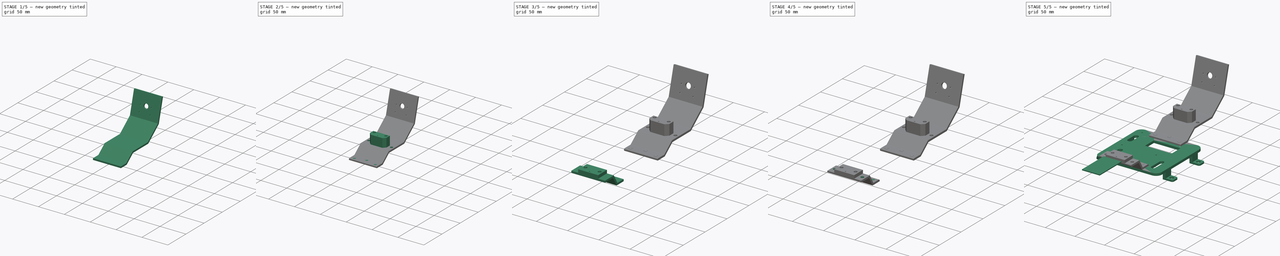
[diagram: build sequence overview — one tinted view per stage of 5, left to right]
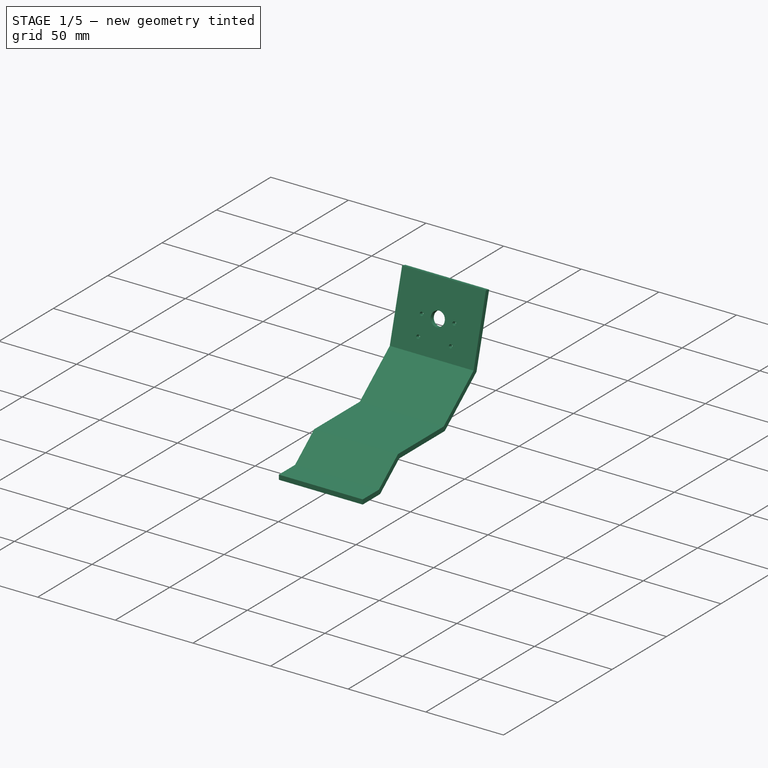
[diagram: stage 1 of 5 — iso view after this stage's code; geometry added in this stage tinted green]
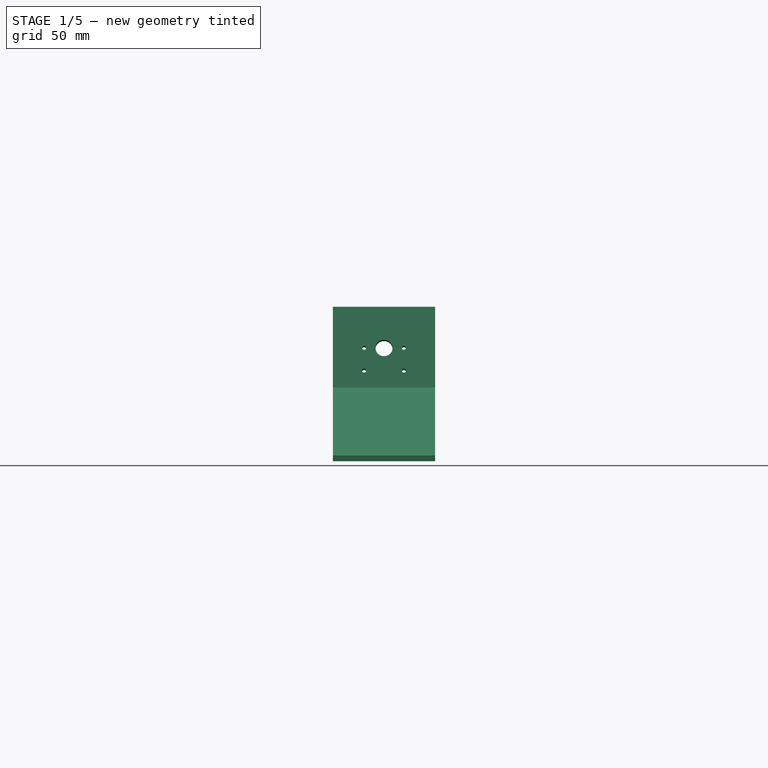
[diagram: stage 1 of 5 — front view after this stage's code; geometry added in this stage tinted green]
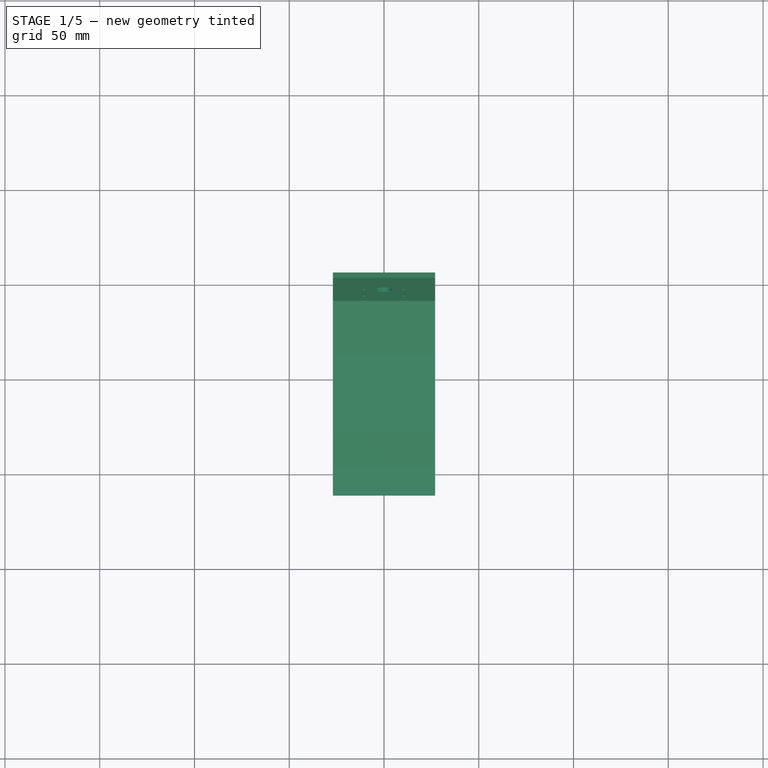
[diagram: stage 1 of 5 — top view after this stage's code; geometry added in this stage tinted green]
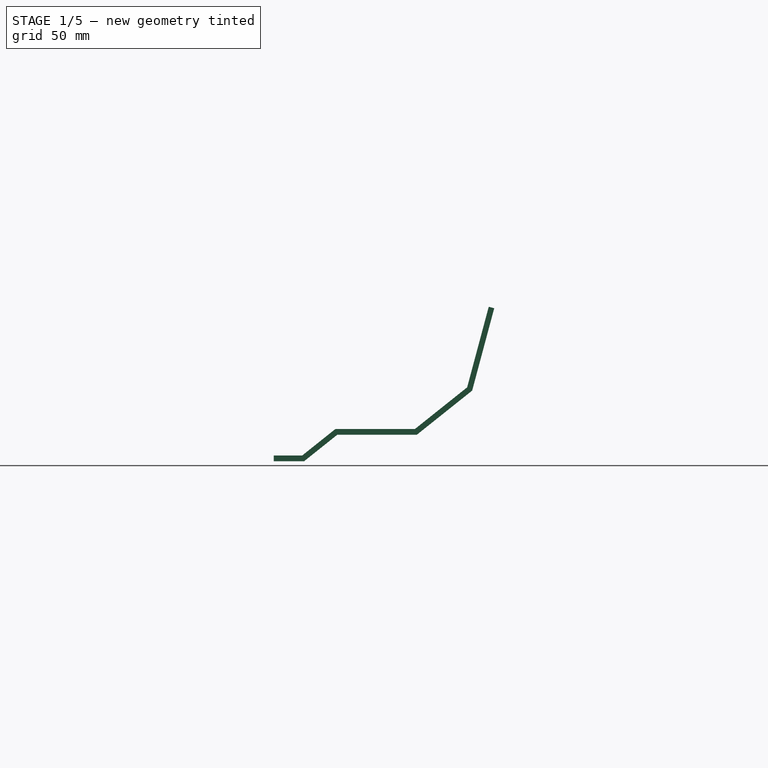
[diagram: stage 1 of 5 — right view after this stage's code; geometry added in this stage tinted green]
FCSTD DOCUMENT  (FreeCAD 0.19R24267 +148 (Git))
Label: PiMount v1.3
License: All rights reserved
LicenseURL: https://en.wikipedia.org/wiki/All_rights_reserved
objects: Sketcher::SketchObject×15, PartDesign::Pocket×10, PartDesign::Pad×8, PartDesign::Fillet×4, PartDesign::Body×4, PartDesign::ShapeBinder×3, PartDesign::Chamfer×2, Spreadsheet::Sheet×1, App::MeasureDistance×1, App::Part×1
note: 70 computed .brp shape members not serialized (recipe doc carries the construction recipe); baked Part::Feature solids carry a one-line shape summary decoded from their .brp

FEATURE [Sketcher::SketchObject] Sketch  label="FeetSketch"
  AttachmentOffset = pos=(0,0,-9.25) rot=(1,0,0;3.14159rad)
  FullyConstrained = true
  MapMode = 5
  Placement = pos=(0,0,-9.25) rot=(1,0,0;3.14159rad)
  Support = -> [XY_Plane001]
  expr: Constraints[64] = <<Dimensions>>.MountScrewHoleRadius
  expr: Constraints[70] = <<Dimensions>>.MountScrewHoleRadius
  expr: Constraints[55] = 13 / 2
  expr: .AttachmentOffset.Base.z = <<Dimensions>>.FeetSketchOffset
  sketch-geometry (32):
    g0: LineSegment StartX=-65.75 StartY=55 StartZ=0 EndX=65.75 EndY=55 EndZ=0
    g1: LineSegment StartX=65.75 StartY=55 StartZ=0 EndX=65.75 EndY=-55 EndZ=0
    g2: LineSegment StartX=65.75 StartY=-55 StartZ=0 EndX=-65.75 EndY=-55 EndZ=0
    g3: LineSegment StartX=-65.75 StartY=-55 StartZ=0 EndX=-65.75 EndY=55 EndZ=0
    g4: LineSegment StartX=48.75 StartY=-28.5 StartZ=0 EndX=65.75 EndY=-28.5 EndZ=0
    g5: LineSegment StartX=65.75 StartY=-28.5 StartZ=0 EndX=65.75 EndY=-41.5 EndZ=0
    g6: LineSegment StartX=65.75 StartY=-41.5 StartZ=0 EndX=48.75 EndY=-41.5 EndZ=0
    g7: LineSegment StartX=48.75 StartY=-41.5 StartZ=0 EndX=48.75 EndY=-28.5 EndZ=0
    g8: LineSegment StartX=-65.75 StartY=-21.5 StartZ=0 EndX=-48.75 EndY=-21.5 EndZ=0
    g9: LineSegment StartX=-48.75 StartY=-21.5 StartZ=0 EndX=-48.75 EndY=-34.5 EndZ=0
    g10: LineSegment StartX=-48.75 StartY=-34.5 StartZ=0 EndX=-65.75 EndY=-34.5 EndZ=0
    g11: LineSegment StartX=-65.75 StartY=-34.5 StartZ=0 EndX=-65.75 EndY=-21.5 EndZ=0
    g12: LineSegment StartX=-65.75 StartY=34.5 StartZ=0 EndX=-48.75 EndY=34.5 EndZ=0
    g13: LineSegment StartX=-48.75 StartY=34.5 StartZ=0 EndX=-48.75 EndY=21.5 EndZ=0
    g14: LineSegment StartX=-48.75 StartY=21.5 StartZ=0 EndX=-65.75 EndY=21.5 EndZ=0
    g15: LineSegment StartX=-65.75 StartY=21.5 StartZ=0 EndX=-65.75 EndY=34.5 EndZ=0
    g16: LineSegment StartX=48.75 StartY=36 StartZ=0 EndX=65.75 EndY=36 EndZ=0
    g17: LineSegment StartX=65.75 StartY=36 StartZ=0 EndX=65.75 EndY=23 EndZ=0
    g18: LineSegment StartX=65.75 StartY=23 StartZ=0 EndX=48.75 EndY=23 EndZ=0
    g19: LineSegment StartX=48.75 StartY=23 StartZ=0 EndX=48.75 EndY=36 EndZ=0
    g20: Circle CenterX=-59.25 CenterY=28 CenterZ=0 NormalX=0 NormalY=0 NormalZ=1 AngleXU=0 Radius=3.25
    g21: Circle CenterX=-59.35 CenterY=-28 CenterZ=0 NormalX=0 NormalY=0 NormalZ=1 AngleXU=0 Radius=3.25
    g22: Circle CenterX=59.25 CenterY=-35 CenterZ=0 NormalX=0 NormalY=0 NormalZ=1 AngleXU=0 Radius=3.25
    g23: Circle CenterX=59.25 CenterY=29.5 CenterZ=0 NormalX=0 NormalY=0 NormalZ=1 AngleXU=0 Radius=3.25
    g24: Circle CenterX=-51.25 CenterY=28 CenterZ=0 NormalX=0 NormalY=0 NormalZ=1 AngleXU=0 Radius=1.3
    g25: Circle CenterX=-51.25 CenterY=-28 CenterZ=0 NormalX=0 NormalY=0 NormalZ=1 AngleXU=0 Radius=1.3
    g26: Circle CenterX=51.25 CenterY=29.5 CenterZ=0 NormalX=0 NormalY=0 NormalZ=1 AngleXU=0 Radius=1.3
    g27: Circle CenterX=51.25 CenterY=-35 CenterZ=0 NormalX=0 NormalY=0 NormalZ=1 AngleXU=0 Radius=1.3
    g28: LineSegment StartX=-59.35 StartY=-28 StartZ=0 EndX=59.25 EndY=29.5 EndZ=0
    g29: GeomPoint X=-56.4256 Y=-26.5821 Z=0
    g30: GeomPoint X=56.3256 Y=28.0821 Z=0
    g31: LineSegment StartX=48.75 StartY=36 StartZ=0 EndX=-65.75 EndY=36 EndZ=0
  constraints (91):
    c: Coincident(g0,g1)
    c: Coincident(g1,g2)
    c: Coincident(g2,g3)
    c: Coincident(g3,g0)
    c: Vertical(g1)
    c: Coincident(g4,g5)
    c: Coincident(g5,g6)
    c: Coincident(g6,g7)
    c: Coincident(g7,g4)
    c: Horizontal(g4)
    c: Horizontal(g6)
    c: Vertical(g5)
    c: Vertical(g7)
    c: PointOnObject(g4,g1)
    c: Distance(g4) = 17
    c: Distance(g7) = 13
    c: Coincident(g8,g9)
    c: Coincident(g9,g10)
    c: Coincident(g10,g11)
    c: Coincident(g11,g8)
    c: Horizontal(g8)
    c: Horizontal(g10)
    c: Vertical(g9)
    c: Vertical(g11)
    c: Equal(g4,g8) = 13.5
    c: Equal(g7,g11) = 13.5
    c: PointOnObject(g10,g3)
    c: Coincident(g12,g13)
    c: Coincident(g13,g14)
    c: Coincident(g14,g15)
    c: Coincident(g15,g12)
    c: Horizontal(g12)
    c: Horizontal(g14)
    c: Vertical(g13)
    c: Vertical(g15)
    c: Equal(g4,g12) = 13.5
    c: Equal(g7,g15) = 13.5
    c: Coincident(g16,g17)
    c: Coincident(g17,g18)
    c: Coincident(g18,g19)
    c: Coincident(g19,g16)
    c: Horizontal(g16)
    c: Vertical(g17)
    c: Vertical(g19)
    c: Equal(g4,g16) = 13.5
    c: Equal(g7,g19) = 13.5
    c: Radius(g20) = 3.25
    c: Radius(g21) = 3.25
    c: Radius(g23) = 3.25
    c: Radius(g22) = 3.25
    c: Symmetric(g0,g2,g-1)
    c: Symmetric(g0,g0,g-2)
    c: Horizontal(g2)
    c: Distance(g20,g15) = 6.5
    c: Distance(g21,g11) = 6.4
    c: Distance(g21,g8) = 6.5
    c: Distance(g20,g12) = 6.5
    c: Distance(g23,g16) = 6.5
    c: Distance(g23,g17) = 6.5
    c: Distance(g22,g4) = 6.5
    c: Distance(g22,g5) = 6.5
    c: Horizontal(g18)
    c: Horizontal(g24,g20)
    c: Distance(g20,g24) = 8
    c: Radius(g24) = 1.3
    c: Equal(g24,g25) = 1
    c: Horizontal(g21,g25)
    c: Vertical(g25,g24)
    c: Horizontal(g26,g23)
    c: Distance(g26,g23) = 8
    c: Radius(g26) = 1.3
    c: Equal(g26,g27) = 1
    c: Horizontal(g27,g22)
    c: Distance(g27,g22) = 8
    c: Vertical(g22,g23)
    c: Distance(g2,g1) = 131.5
    c: Coincident(g28,g21)
    c: Coincident(g28,g23)
    c: PointOnObject(g29,g21)
    c: PointOnObject(g29,g28)
    c: PointOnObject(g30,g23)
    c: PointOnObject(g30,g28)
    c: Distance(g30,g29) = 124
    c: Symmetric(g8,g14,g-1)
    c: Distance(g1) = 110
    c: Distance(g23,g22) = 64.5
    c: Distance(g20,g21) = 56
    c: Coincident(g31,g16)
    c: PointOnObject(g31,g3)
    c: Horizontal(g31)
    c: Distance(g31,g12) = 1.5
FEATURE [Sketcher::SketchObject] Sketch001  label="PlateSketch"
  ExternalGeometry = -> [Sketch]
  FullyConstrained = true
  MapMode = 5
  Support = -> [XY_Plane001]
  expr: Constraints[9] = <<Dimensions>>.PlateLength
  sketch-geometry (4):
    g0: LineSegment StartX=-53.75 StartY=55 StartZ=0 EndX=53.75 EndY=55 EndZ=0
    g1: LineSegment StartX=53.75 StartY=55 StartZ=0 EndX=53.75 EndY=-55 EndZ=0
    g2: LineSegment StartX=53.75 StartY=-55 StartZ=0 EndX=-53.75 EndY=-55 EndZ=0
    g3: LineSegment StartX=-53.75 StartY=-55 StartZ=0 EndX=-53.75 EndY=55 EndZ=0
  constraints (10):
    c: Coincident(g0,g1)
    c: Coincident(g1,g2)
    c: Coincident(g2,g3)
    c: Coincident(g3,g0)
    c: Horizontal(g2)
    c: Vertical(g1)
    c: Symmetric(g0,g0,g-2)
    c: Symmetric(g0,g2,g-1)
    c: Distance(g-3,g3) = 5
    c: Distance(g3) = 110
FEATURE [PartDesign::Pad] Pad  label="PlatePad"
  Direction = (0,0,1)
  Length = 4
  Length2 = 10
  Profile = -> Sketch001
  Type = 0
  expr: Length = <<Dimensions>>.PlateThickness
FEATURE [Sketcher::SketchObject] Sketch002  label="LegStandoffSketch"
  ExternalGeometry = -> [Sketch001,Sketch]
  FullyConstrained = true
  MapMode = 5
  Placement = pos=(0,0,0) rot=(1,0,0;3.14159rad)
  Support = -> [Pad]
  sketch-geometry (16):
    g0: LineSegment StartX=-48.75 StartY=34.5 StartZ=0 EndX=-53.75 EndY=34.5 EndZ=0
    g1: LineSegment StartX=-53.75 StartY=34.5 StartZ=0 EndX=-53.75 EndY=21.5 EndZ=0
    g2: LineSegment StartX=-53.75 StartY=21.5 StartZ=0 EndX=-48.75 EndY=21.5 EndZ=0
    g3: LineSegment StartX=-48.75 StartY=21.5 StartZ=0 EndX=-48.75 EndY=34.5 EndZ=0
    g4: LineSegment StartX=-48.75 StartY=-21.5 StartZ=0 EndX=-53.75 EndY=-21.5 EndZ=0
    g5: LineSegment StartX=-53.75 StartY=-21.5 StartZ=0 EndX=-53.75 EndY=-34.5 EndZ=0
    g6: LineSegment StartX=-53.75 StartY=-34.5 StartZ=0 EndX=-48.75 EndY=-34.5 EndZ=0
    g7: LineSegment StartX=-48.75 StartY=-34.5 StartZ=0 EndX=-48.75 EndY=-21.5 EndZ=0
    g8: LineSegment StartX=48.75 StartY=36 StartZ=0 EndX=53.75 EndY=36 EndZ=0
    g9: LineSegment StartX=53.75 StartY=36 StartZ=0 EndX=53.75 EndY=23 EndZ=0
    g10: LineSegment StartX=53.75 StartY=23 StartZ=0 EndX=48.75 EndY=23 EndZ=0
    g11: LineSegment StartX=48.75 StartY=23 StartZ=0 EndX=48.75 EndY=36 EndZ=0
    g12: LineSegment StartX=48.75 StartY=-28.5 StartZ=0 EndX=53.75 EndY=-28.5 EndZ=0
    g13: LineSegment StartX=53.75 StartY=-28.5 StartZ=0 EndX=53.75 EndY=-41.5 EndZ=0
    g14: LineSegment StartX=53.75 StartY=-41.5 StartZ=0 EndX=48.75 EndY=-41.5 EndZ=0
    g15: LineSegment StartX=48.75 StartY=-41.5 StartZ=0 EndX=48.75 EndY=-28.5 EndZ=0
  constraints (42):
    c: Coincident(g0,g1)
    c: Coincident(g1,g2)
    c: Coincident(g2,g3)
    c: Coincident(g3,g0)
    c: Horizontal(g0)
    c: Horizontal(g2)
    c: Vertical(g1)
    c: Coincident(g0,g-9)
    c: Coincident(g-10,g2)
    c: PointOnObject(g1,g-3)
    c: Coincident(g4,g5)
    c: Coincident(g5,g6)
    c: Coincident(g6,g7)
    c: Coincident(g7,g4)
    c: Horizontal(g4)
    c: Horizontal(g6)
    c: Vertical(g5)
    c: Coincident(g-11,g4)
    c: Coincident(g6,g-12)
    c: PointOnObject(g5,g-3)
    c: Coincident(g8,g9)
    c: Coincident(g9,g10)
    c: Coincident(g10,g11)
    c: Coincident(g11,g8)
    c: Horizontal(g8)
    c: Horizontal(g10)
    c: Vertical(g9)
    c: Vertical(g11)
    c: Coincident(g8,g-15)
    c: PointOnObject(g9,g-16)
    c: PointOnObject(g9,g-7)
    c: Coincident(g12,g13)
    c: Coincident(g13,g14)
    c: Coincident(g14,g15)
    c: Coincident(g15,g12)
    c: Horizontal(g12)
    c: Horizontal(g14)
    c: Vertical(g13)
    c: Vertical(g15)
    c: Coincident(g12,g-13)
    c: PointOnObject(g13,g-14)
    c: PointOnObject(g13,g-7)
FEATURE [PartDesign::Pad] Pad001  label="LegStandoffPad"
  BaseFeature = -> Pad
  Direction = (0,0,-1)
  Length = 9.25
  Length2 = 10
  Profile = -> Sketch002
  Type = 0
  expr: Length = <<Dimensions>>.FeetStandoffHeight
FEATURE [PartDesign::Pad] Pad002  label="LegFeetPad"
  BaseFeature = -> Pad001
  Direction = (0,-1e-16,-1)
  Length = 2.75
  Length2 = 10
  Profile = -> Sketch
  Type = 0
  expr: Length = <<Dimensions>>.FeetThickness
FEATURE [PartDesign::ShapeBinder] ShapeBinder  label="FrontPlateShapeBinder"
  Support = -> [Pad002]
  TraceSupport = false
FEATURE [Sketcher::SketchObject] Sketch005  label="FrontProfileSketch"
  ExternalGeometry = -> [ShapeBinder]
  FullyConstrained = true
  MapMode = 5
  Placement = pos=(0,0,0) rot=(0.57735,0.57735,0.57735;2.0944rad)
  Support = -> [YZ_Plane002]
  expr: Constraints[43] = <<Dimensions>>.PlateFrontOverlap
  expr: Constraints[40] = <<Dimensions>>.FrontThickness
  expr: Constraints[25] = <<Dimensions>>.FrontThickness
  expr: Constraints[22] = <<Dimensions>>.FrontThickness
  expr: Constraints[17] = <<Dimensions>>.FrontThickness
  expr: Constraints[16] = <<Dimensions>>.FrontThickness
  sketch-geometry (18):
    g0: LineSegment StartX=86.5 StartY=0 StartZ=0 EndX=149.5 EndY=0 EndZ=0
    g1: LineSegment StartX=149.5 StartY=63 StartZ=0 EndX=149.5 EndY=-12 EndZ=0
    g2: LineSegment StartX=86.5 StartY=21 StartZ=0 EndX=86.5 EndY=-12 EndZ=0
    g3: LineSegment StartX=143.677 StartY=41.2667 StartZ=0 EndX=155.323 EndY=84.7333 EndZ=0
    g4: LineSegment StartX=55 StartY=4 StartZ=0 EndX=72.55 EndY=18 EndZ=0
    g5: LineSegment StartX=53.95 StartY=7 StartZ=0 EndX=71.5 EndY=21 EndZ=0
    g6: LineSegment StartX=72.55 StartY=18 StartZ=0 EndX=114.51 EndY=18 EndZ=0
    g7: LineSegment StartX=143.677 StartY=41.2667 StartZ=0 EndX=114.51 EndY=18 EndZ=0
    g8: LineSegment StartX=113.46 StartY=21 StartZ=0 EndX=141.034 EndY=42.9964 EndZ=0
    g9: LineSegment StartX=152.426 StartY=85.5098 StartZ=0 EndX=141.034 EndY=42.9964 EndZ=0
    g10: LineSegment StartX=152.426 StartY=85.5098 StartZ=0 EndX=155.323 EndY=84.7333 EndZ=0
    g11: LineSegment StartX=71.5 StartY=21 StartZ=0 EndX=86.5 EndY=21 EndZ=0
    g12: LineSegment StartX=86.5 StartY=21 StartZ=0 EndX=113.46 EndY=21 EndZ=0
    g13: LineSegment StartX=86.5 StartY=0 StartZ=0 EndX=34.5 EndY=2.45e-14 EndZ=0
    g14: LineSegment StartX=39 StartY=4 StartZ=0 EndX=47 EndY=4 EndZ=0
    g15: LineSegment StartX=47 StartY=4 StartZ=0 EndX=55 EndY=4 EndZ=0
    g16: LineSegment StartX=53.95 StartY=7 StartZ=0 EndX=39 EndY=7 EndZ=0
    g17: LineSegment StartX=39 StartY=7 StartZ=0 EndX=39 EndY=4 EndZ=0
  constraints (52):
    c: PointOnObject(g0,g-1)
    c: PointOnObject(g0,g-1)
    c: Vertical(g1)
    c: PointOnObject(g0,g1)
    c: Distance(g1) = 75
    c: Vertical(g2)
    c: PointOnObject(g0,g2)
    c: Distance(g2) = 33
    c: Angle(g3) = 1.309
    c: Symmetric(g3,g3,g1)
    c: Distance(g3) = 45
    c: Distance(g0) = 63
    c: Coincident(g11,g5)
    c: Parallel(g5,g4)
    c: Coincident(g6,g4)
    c: Horizontal(g6)
    c: Distance(g12,g6) = 3
    c: Distance(g4,g5) = 3
    c: Coincident(g7,g3)
    c: Coincident(g7,g6)
    c: Coincident(g8,g12)
    c: Parallel(g7,g8)
    c: Distance(g8,g7) = 3
    c: Coincident(g9,g8)
    c: Parallel(g9,g3)
    c: Distance(g8,g3) = 3
    c: Coincident(g10,g9)
    c: Coincident(g10,g3)
    c: Perpendicular(g10,g3)
    c: Coincident(g11,g12)
    c: Horizontal(g11)
    c: Coincident(g2,g11)
    c: Coincident(g13,g0)
    c: Distance(g13) = 52
    c: Horizontal(g1,g2)
    c: Horizontal(g14)
    c: Coincident(g15,g4)
    c: Horizontal(g16)
    c: Coincident(g17,g16)
    c: Vertical(g17)
    c: Distance(g5,g15) = 3
    c: Coincident(g14,g17)
    c: Coincident(g14,g15)
    c: Distance(g14,g4) = 16
    c: Coincident(g16,g5)
    c: Symmetric(g14,g4,g14)
    c: Horizontal(g12)
    c: Parallel(g4,g7)
    c: Distance(g11) = 15
    c: Horizontal(g2,g-8)
    c: Coincident(g4,g-7)
    c: Coincident(g-9,g13)
FEATURE [PartDesign::Pad] Pad003  label="FrontProfilePad"
  Direction = (1,-2e-16,3e-16)
  Length = 54
  Length2 = 10
  Midplane = true
  Placement = pos=(0,0,0) rot=(0.57735,0.57735,0.57735;2.0944rad)
  Profile = -> Sketch005
  Type = 0
  expr: Length = <<Dimensions>>.FrontWidth
FEATURE [Sketcher::SketchObject] Sketch006  label="CameraMountSketch"
  ExternalGeometry = -> [Pad003]
  FullyConstrained = true
  MapMode = 5
  Placement = pos=(6.41e-14,123.735,-33.1548) rot=(0.621515,0.621515,0.476905;4.0316rad)
  Support = -> [Pad003]
  sketch-geometry (9):
    g0: LineSegment StartX=85.1468 StartY=12.5 StartZ=0 EndX=109.009 EndY=12.5 EndZ=0
    g1: LineSegment StartX=109.009 StartY=12.5 StartZ=0 EndX=109.009 EndY=-12.5 EndZ=0
    g2: LineSegment StartX=109.009 StartY=-12.5 StartZ=0 EndX=85.1468 EndY=-12.5 EndZ=0
    g3: LineSegment StartX=85.1468 StartY=-12.5 StartZ=0 EndX=85.1468 EndY=12.5 EndZ=0
    g4: Circle CenterX=99.5468 CenterY=-7.4e-14 CenterZ=0 NormalX=0 NormalY=0 NormalZ=1 AngleXU=0 Radius=4.5
    g5: Circle CenterX=99.6468 CenterY=10.5 CenterZ=0 NormalX=0 NormalY=0 NormalZ=1 AngleXU=0 Radius=1.1
    g6: Circle CenterX=99.6468 CenterY=-10.5 CenterZ=0 NormalX=0 NormalY=0 NormalZ=1 AngleXU=0 Radius=1.1
    g7: Circle CenterX=87.1468 CenterY=-10.5 CenterZ=0 NormalX=0 NormalY=0 NormalZ=1 AngleXU=0 Radius=1.1
    g8: Circle CenterX=87.1468 CenterY=10.5 CenterZ=0 NormalX=0 NormalY=0 NormalZ=1 AngleXU=0 Radius=1.1
  constraints (25):
    c: Coincident(g0,g1)
    c: Coincident(g1,g2)
    c: Coincident(g2,g3)
    c: Coincident(g3,g0)
    c: Horizontal(g2)
    c: Vertical(g3)
    c: Radius(g4) = 4.5
    c: Distance(g2) = 23.862
    c: Distance(g1) = 25
    c: Symmetric(g0,g1,g-1)
    c: Radius(g8) = 1.1
    c: Equal(g8,g5)
    c: Equal(g8,g7)
    c: Equal(g8,g6)
    c: Distance(g7,g2) = 2
    c: Distance(g7,g3) = 2
    c: Vertical(g8,g7)
    c: Horizontal(g8,g5)
    c: Horizontal(g0)
    c: Horizontal(g7,g6)
    c: Distance(g4,g1) = 9.462
    c: Vertical(g6,g5)
    c: Distance(g8,g0) = 2
    c: Distance(g5,g3) = 14.5
    c: Symmetric(g-3,g-4,g4)
FEATURE [PartDesign::Pocket] Pocket001  label="CameraMountPocket"
  BaseFeature = -> Pad003
  Length = 5
  Length2 = 5
  Placement = pos=(0,0,0) rot=(0.57735,0.57735,0.57735;2.0944rad)
  Profile = -> Sketch006
  Type = 1
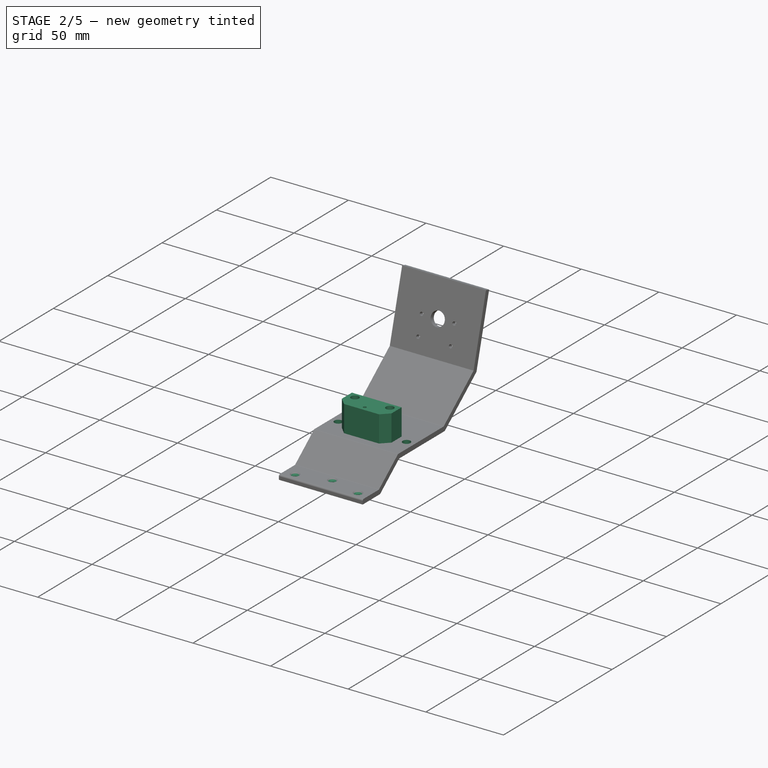
[diagram: stage 2 of 5 — iso view after this stage's code; geometry added in this stage tinted green]
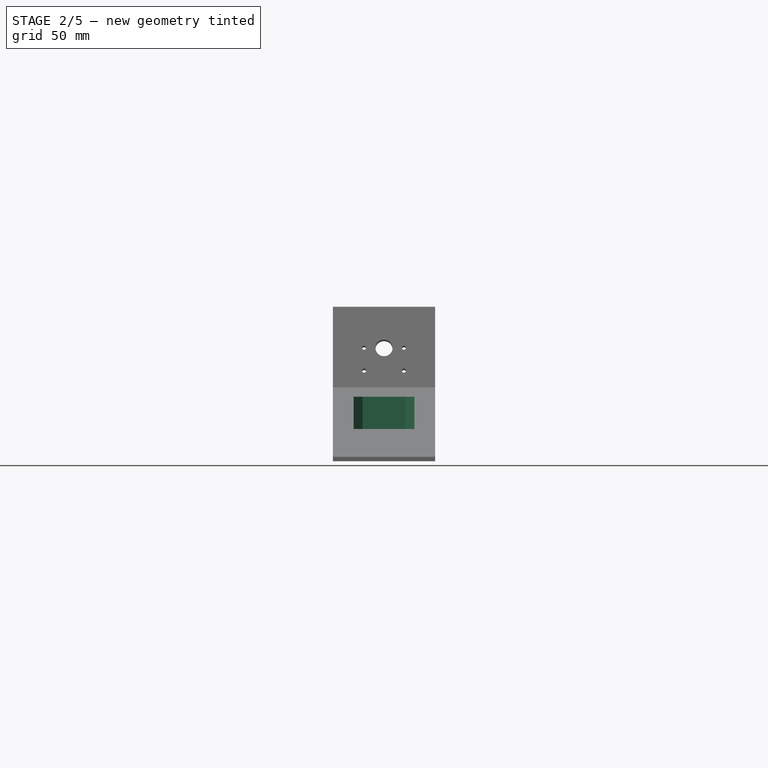
[diagram: stage 2 of 5 — front view after this stage's code; geometry added in this stage tinted green]
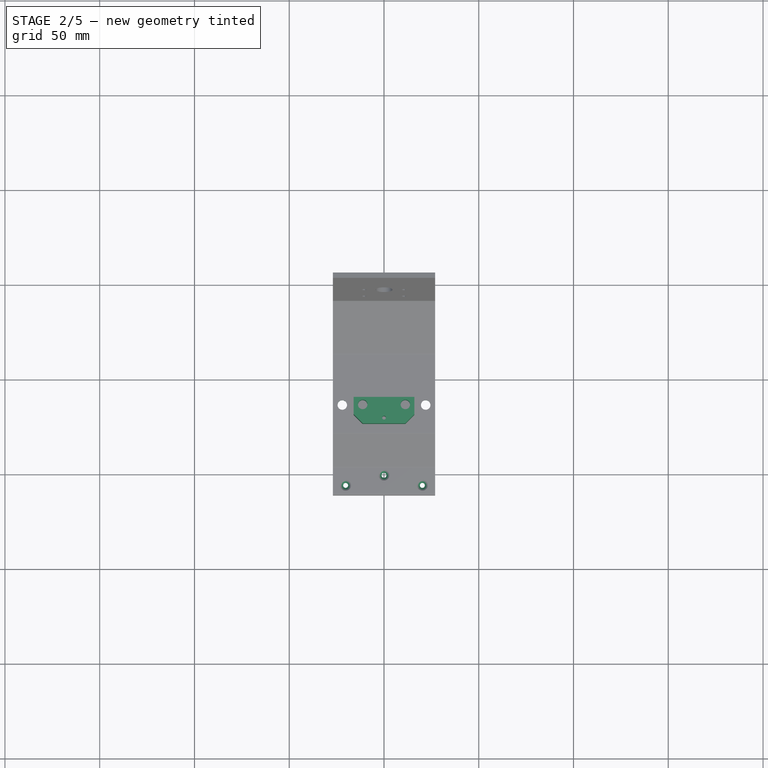
[diagram: stage 2 of 5 — top view after this stage's code; geometry added in this stage tinted green]
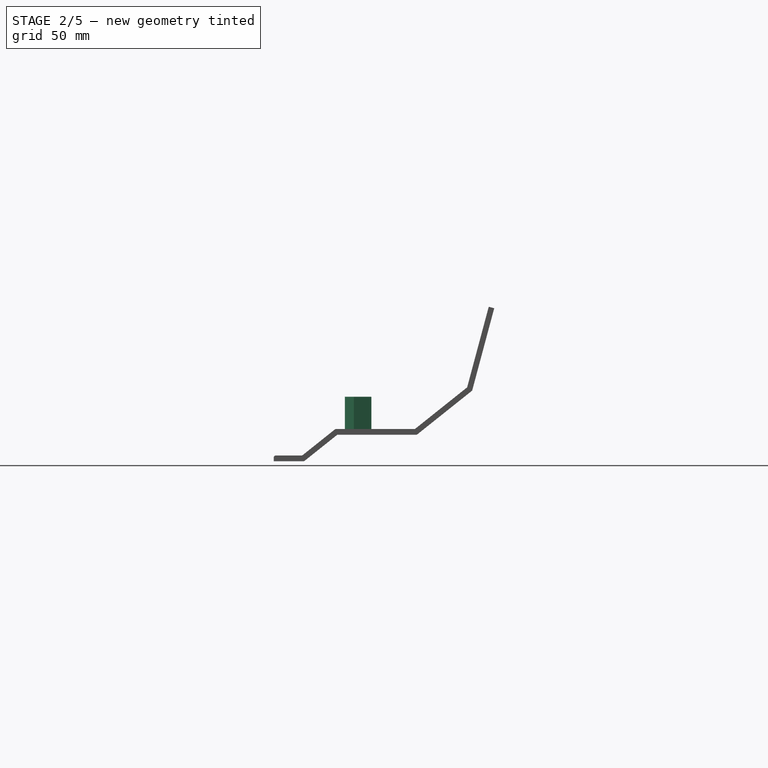
[diagram: stage 2 of 5 — right view after this stage's code; geometry added in this stage tinted green]
FEATURE [Sketcher::SketchObject] Sketch007  label="ChassisMountSketch"
  ExternalGeometry = -> [Pocket001]
  FullyConstrained = true
  MapMode = 5
  Placement = pos=(-5.9e-15,9.2e-15,21) rot=(0,0,-1;1.5708rad)
  Support = -> [Pocket001]
  sketch-geometry (10):
    g0: LineSegment StartX=-90.5 StartY=16 StartZ=0 EndX=-90.5 EndY=-16 EndZ=0
    g1: Circle CenterX=-86.5 CenterY=-11.25 CenterZ=0 NormalX=0 NormalY=0 NormalZ=1 AngleXU=0 Radius=2.5
    g2: Circle CenterX=-86.5 CenterY=11.25 CenterZ=0 NormalX=0 NormalY=0 NormalZ=1 AngleXU=0 Radius=2.5
    g3: Circle CenterX=-79.5 CenterY=0 CenterZ=0 NormalX=0 NormalY=0 NormalZ=1 AngleXU=0 Radius=1
    g4: LineSegment StartX=-90.5 StartY=-16 StartZ=0 EndX=-81.25 EndY=-16 EndZ=0
    g5: LineSegment StartX=-90.5 StartY=16 StartZ=0 EndX=-81.25 EndY=16 EndZ=0
    g6: LineSegment StartX=-76.5 StartY=11.25 StartZ=0 EndX=-76.5 EndY=-11.25 EndZ=0
    g7: LineSegment StartX=-86.5 StartY=-16 StartZ=0 EndX=-86.5 EndY=16 EndZ=0
    g8: LineSegment StartX=-81.25 StartY=16 StartZ=0 EndX=-76.5 EndY=11.25 EndZ=0
    g9: LineSegment StartX=-81.25 StartY=-16 StartZ=0 EndX=-76.5 EndY=-11.25 EndZ=0
  constraints (29):
    c: Vertical(g0)
    c: Radius(g2) = 2.5
    c: Radius(g1) = 2.5
    c: Symmetric(g2,g1,g-1)
    c: PointOnObject(g3,g-1)
    c: Radius(g3) = 1
    c: Vertical(g6)
    c: Distance(g2,g1) = 22.5
    c: PointOnObject(g1,g-3)
    c: Distance(g3,g-3) = 7
    c: Distance(g2,g0) = 4
    c: PointOnObject(g7,g-3)
    c: Symmetric(g7,g7,g-1)
    c: Distance(g7) = 32
    c: Coincident(g0,g5)
    c: Horizontal(g5)
    c: Coincident(g4,g0)
    c: Horizontal(g4)
    c: PointOnObject(g7,g4)
    c: PointOnObject(g7,g5)
    c: Coincident(g5,g8)
    c: Coincident(g6,g8)
    c: Angle(g8) = -0.785398
    c: Horizontal(g2,g6)
    c: Distance(g6,g2) = 10
    c: Angle(g9) = 0.785398
    c: Coincident(g4,g9)
    c: Coincident(g6,g9)
    c: Horizontal(g1,g6)
FEATURE [PartDesign::Pad] Pad004  label="ChassisMountPad"
  BaseFeature = -> Pocket001
  Direction = (-7e-16,7e-16,1)
  Length = 17
  Length2 = 10
  Placement = pos=(0,0,0) rot=(0.57735,0.57735,0.57735;2.0944rad)
  Profile = -> Sketch007
  Type = 0
FEATURE [Spreadsheet::Sheet] Spreadsheet  label="Dimensions"
  cells = A1=LegsHeight; B1(LegsHeight)=16; A2=FeetThickness; B2(FeetThickness)=2.75; A3=PlateThickness; B3(PlateThickness)=4; A4=FeetSketchOffset; B4(FeetSketchOffset)==-(B1 - B2 - B3); A5=FeetStandoffHeight; B5(FeetStandoffHeight)==B1 - B2 - B3; A6=PlateFrontOverlap; B6(PlateFrontOverlap)=16; A7=FrontWidth; B7(FrontWidth)=54; A8=PlateLength; B8(PlateLength)=110; A9=FrontThickness; B9(FrontThickness)=3; A10=BackWidth; B10(BackWidth)=54; A11=MountScrewHoleRadius; B11(MountScrewHoleRadius)=1.3
FEATURE [PartDesign::Fillet] Fillet002  label="FrontEdgesFillet"
  Base = -> Pad004 [Edge1,Edge58,Edge2,Edge43,Edge42,Edge41,Edge40,Edge5]
  BaseFeature = -> Pad004
  Placement = pos=(0,0,0) rot=(0.57735,0.57735,0.57735;2.0944rad)
  Radius = 1
  SupportTransform = false
FEATURE [Sketcher::SketchObject] Sketch008  label="FrontScrewMountSketch"
  ExternalGeometry = -> [ShapeBinder]
  FullyConstrained = true
  MapMode = 5
  Placement = pos=(-2e-15,3.1e-15,7) rot=(0,0,-1;1.5708rad)
  Support = -> [Fillet002]
  expr: Constraints[7] = <<Dimensions>>.PlateFrontOverlap * 2 / 3
  expr: Constraints[6] = <<Dimensions>>.PlateFrontOverlap / 3
  expr: Constraints[5] = <<Dimensions>>.FrontWidth / 4 * 3
  expr: Constraints[1] = <<Dimensions>>.MountScrewHoleRadius
  sketch-geometry (3):
    g0: Circle CenterX=-44.3333 CenterY=20.25 CenterZ=0 NormalX=0 NormalY=0 NormalZ=1 AngleXU=0 Radius=1.3
    g1: Circle CenterX=-44.3333 CenterY=-20.25 CenterZ=0 NormalX=0 NormalY=0 NormalZ=1 AngleXU=0 Radius=1.3
    g2: Circle CenterX=-49.6667 CenterY=0 CenterZ=0 NormalX=0 NormalY=0 NormalZ=1 AngleXU=0 Radius=1.3
  constraints (8):
    c: PointOnObject(g2,g-1)
    c: Radius(g2) = 1.3
    c: Equal(g2,g0)
    c: Equal(g2,g1)
    c: Symmetric(g0,g1,g-1)
    c: Distance(g0,g1) = 40.5
    c: Distance(g2,g-3) = 5.33333
    c: Distance(g0,g-3) = 10.6667
FEATURE [PartDesign::Pocket] Pocket002  label="FrontScrewMountPad"
  BaseFeature = -> Fillet002
  Length = 5
  Length2 = 5
  Placement = pos=(0,0,0) rot=(0.57735,0.57735,0.57735;2.0944rad)
  Profile = -> Sketch008
  Type = 0
FEATURE [PartDesign::Chamfer] Chamfer  label="FrontScrewMountChamfer"
  Angle = 45
  Base = -> Pocket002 [Edge5,Edge6,Edge7]
  BaseFeature = -> Pocket002
  ChamferType = 0
  FlipDirection = false
  Placement = pos=(0,0,0) rot=(0.57735,0.57735,0.57735;2.0944rad)
  Size = 1.5
  Size2 = 1
  SupportTransform = false
FEATURE [PartDesign::Body] Body  label="Plate"
  Group = -> [Sketch,Sketch001,Pad,Sketch002,Pad001,Pad002,Fillet,Sketch004,Pocket,Pocket009,Fillet004]
  Origin = -> Origin001
  Tip = -> Fillet004
FEATURE [Sketcher::SketchObject] Sketch017
  ExternalGeometry = -> [Chamfer]
  FullyConstrained = true
  MapMode = 5
  Placement = pos=(-5.9e-15,9.2e-15,21) rot=(0,0,-1;1.5708rad)
  Support = -> [Chamfer]
  sketch-geometry (2):
    g0: Circle CenterX=-86.5 CenterY=22 CenterZ=0 NormalX=0 NormalY=0 NormalZ=1 AngleXU=0 Radius=2.5
    g1: Circle CenterX=-86.5 CenterY=-22 CenterZ=0 NormalX=0 NormalY=0 NormalZ=1 AngleXU=0 Radius=2.5
  constraints (5):
    c: PointOnObject(g0,g-3)
    c: Radius(g1) = 2.5
    c: Radius(g0) = 2.5
    c: Symmetric(g0,g1,g-1)
    c: Distance(g1,g0) = 44
FEATURE [PartDesign::Pocket] Pocket010
  BaseFeature = -> Chamfer
  Length = 5
  Length2 = 5
  Placement = pos=(0,0,0) rot=(0.57735,0.57735,0.57735;2.0944rad)
  Profile = -> Sketch017
  Type = 0
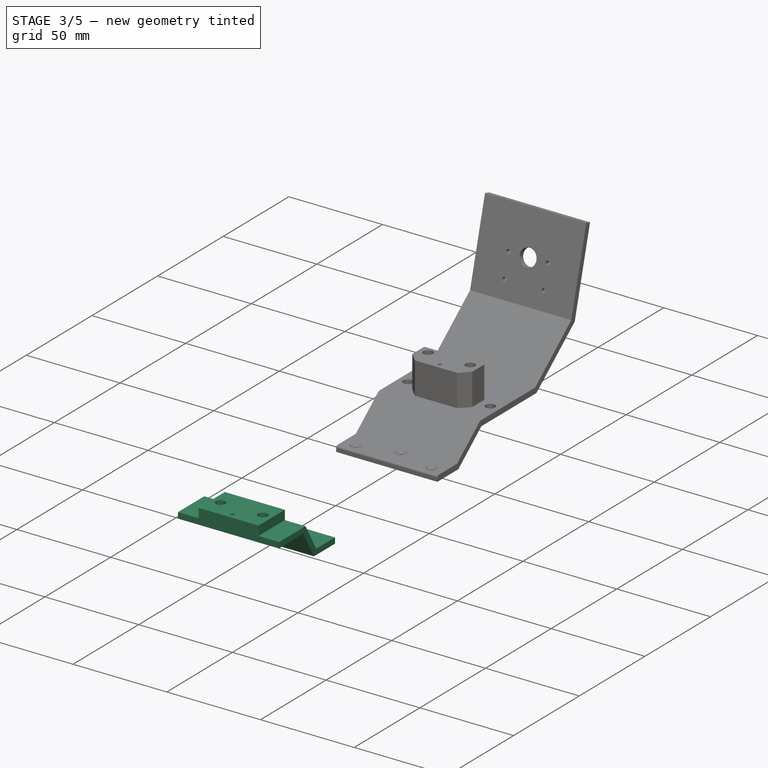
[diagram: stage 3 of 5 — iso view after this stage's code; geometry added in this stage tinted green]
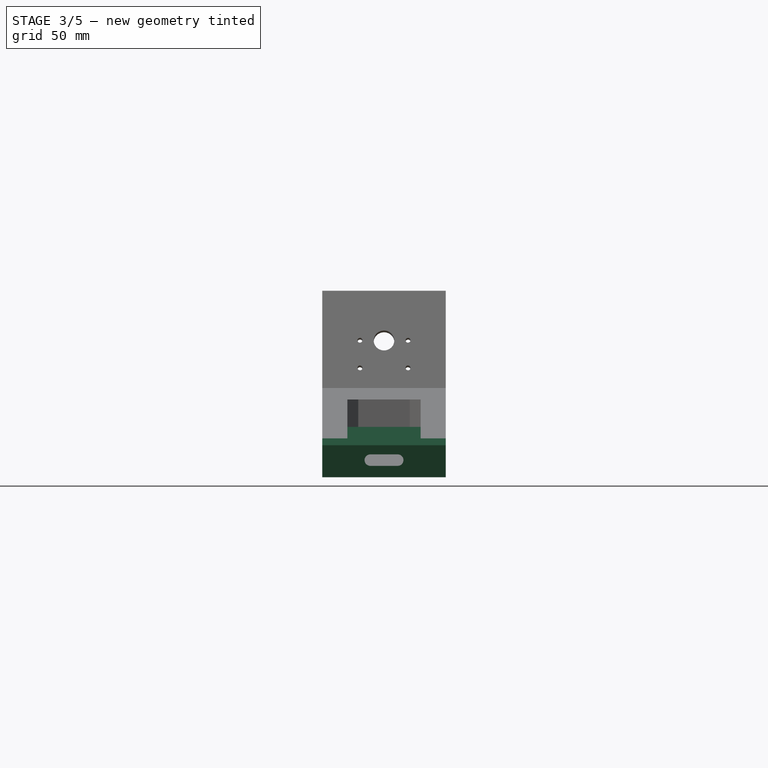
[diagram: stage 3 of 5 — front view after this stage's code; geometry added in this stage tinted green]
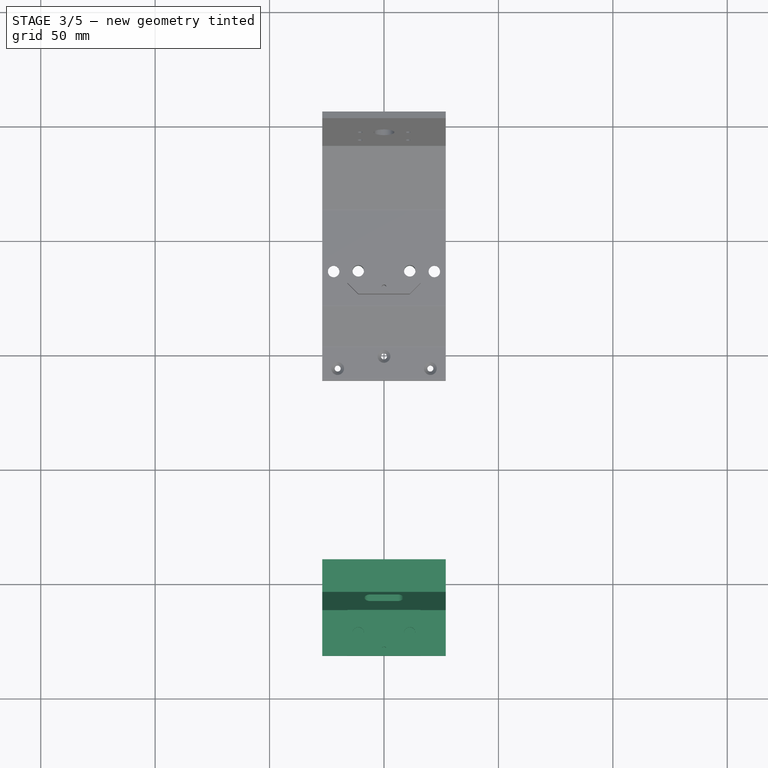
[diagram: stage 3 of 5 — top view after this stage's code; geometry added in this stage tinted green]
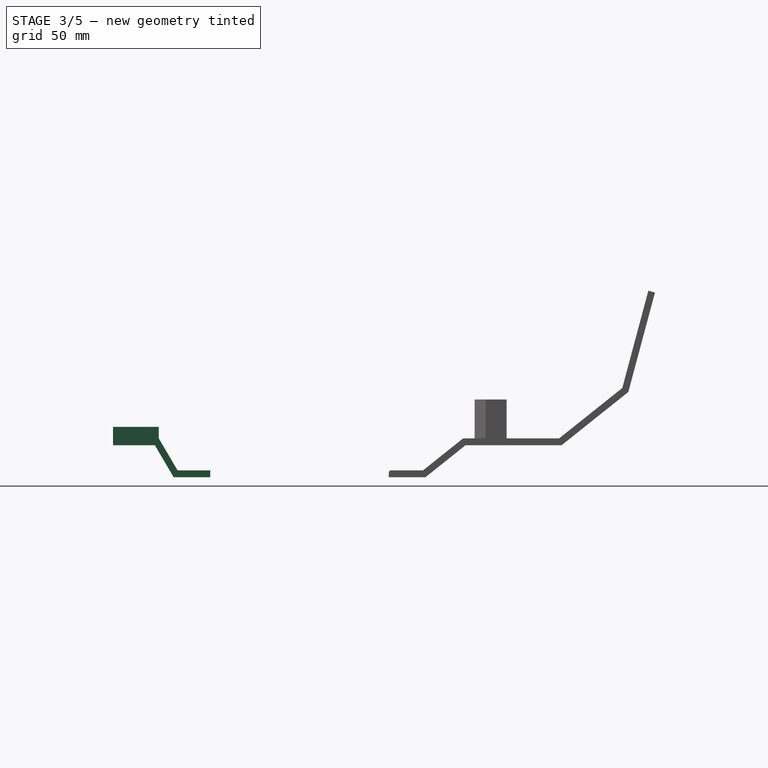
[diagram: stage 3 of 5 — right view after this stage's code; geometry added in this stage tinted green]
FEATURE [PartDesign::ShapeBinder] ShapeBinder001  label="BackPlateShapeBinder"
  Support = -> [Pad002]
  TraceSupport = false
FEATURE [Sketcher::SketchObject] Sketch009  label="BackProfileSketch"
  ExternalGeometry = -> [ShapeBinder001]
  FullyConstrained = true
  MapMode = 5
  Placement = pos=(0,0,0) rot=(0.57735,0.57735,0.57735;2.0944rad)
  Support = -> [YZ_Plane003]
  expr: Constraints[16] = <<Dimensions>>.PlateFrontOverlap
  sketch-geometry (10):
    g0: LineSegment StartX=-34.5 StartY=-12 StartZ=0 EndX=-71.5 EndY=-12 EndZ=0
    g1: LineSegment StartX=-71.5 StartY=-12 StartZ=0 EndX=-71.5 EndY=21 EndZ=0
    g2: LineSegment StartX=-53.2823 StartY=7 StartZ=0 EndX=-61.5 EndY=21 EndZ=0
    g3: LineSegment StartX=-55 StartY=4 StartZ=0 EndX=-63.2177 EndY=18 EndZ=0
    g4: LineSegment StartX=-55 StartY=4 StartZ=0 EndX=-39 EndY=4 EndZ=0
    g5: LineSegment StartX=-53.2823 StartY=7 StartZ=0 EndX=-39 EndY=7 EndZ=0
    g6: LineSegment StartX=-39 StartY=4 StartZ=0 EndX=-39 EndY=7 EndZ=0
    g7: LineSegment StartX=-61.5 StartY=21 StartZ=0 EndX=-81.5 EndY=21 EndZ=0
    g8: LineSegment StartX=-63.2177 StartY=18 StartZ=0 EndX=-81.5 EndY=18 EndZ=0
    g9: LineSegment StartX=-81.5 StartY=21 StartZ=0 EndX=-81.5 EndY=18 EndZ=0
  constraints (29):
    c: Horizontal(g0)
    c: Distance(g0) = 37
    c: Coincident(g1,g0)
    c: Vertical(g1)
    c: Distance(g1) = 33
    c: Coincident(g-3,g3)
    c: Coincident(g4,g3)
    c: Horizontal(g4)
    c: Distance(g2,g4) = 3
    c: Parallel(g2,g3)
    c: Distance(g2,g3) = 3
    c: Coincident(g5,g2)
    c: Horizontal(g5)
    c: Coincident(g6,g4)
    c: Coincident(g6,g5)
    c: Vertical(g6)
    c: Distance(g4) = 16
    c: Coincident(g7,g2)
    c: Horizontal(g7)
    c: Coincident(g8,g3)
    c: Horizontal(g8)
    c: Coincident(g9,g7)
    c: Coincident(g9,g8)
    c: Vertical(g9)
    c: Distance(g3,g7) = 3
    c: PointOnObject(g1,g7)
    c: Distance(g1,g2) = 10
    c: Distance(g7) = 20
    c: Coincident(g0,g-4)
FEATURE [PartDesign::Pad] Pad005  label="BackProfilePad"
  Direction = (1,-2e-16,3e-16)
  Length = 54
  Length2 = 10
  Midplane = true
  Placement = pos=(0,0,0) rot=(0.57735,0.57735,0.57735;2.0944rad)
  Profile = -> Sketch009
  Type = 0
  expr: Length = <<Dimensions>>.BackWidth
FEATURE [Sketcher::SketchObject] Sketch010  label="BodyHolderSketch"
  ExternalGeometry = -> [Pad005]
  FullyConstrained = true
  MapMode = 5
  Placement = pos=(-5.9e-15,9.2e-15,21) rot=(0,0,-1;1.5708rad)
  Support = -> [Pad005]
  sketch-geometry (8):
    g0: Circle CenterX=71.5 CenterY=11.25 CenterZ=0 NormalX=0 NormalY=0 NormalZ=1 AngleXU=0 Radius=2.5
    g1: Circle CenterX=71.5 CenterY=-11.25 CenterZ=0 NormalX=0 NormalY=0 NormalZ=1 AngleXU=0 Radius=2.5
    g2: Circle CenterX=78.5 CenterY=0 CenterZ=0 NormalX=0 NormalY=0 NormalZ=1 AngleXU=0 Radius=1
    g3: LineSegment StartX=81.5 StartY=-16 StartZ=0 EndX=81.5 EndY=16 EndZ=0
    g4: LineSegment StartX=71.5 StartY=27 StartZ=0 EndX=71.5 EndY=-27 EndZ=0
    g5: LineSegment StartX=61.5 StartY=16 StartZ=0 EndX=81.5 EndY=16 EndZ=0
    g6: LineSegment StartX=61.5 StartY=16 StartZ=0 EndX=61.5 EndY=-16 EndZ=0
    g7: LineSegment StartX=61.5 StartY=-16 StartZ=0 EndX=81.5 EndY=-16 EndZ=0
  constraints (23):
    c: Radius(g1) = 2.5
    c: Radius(g0) = 2.5
    c: Symmetric(g0,g1,g-1)
    c: Distance(g0,g1) = 22.5
    c: PointOnObject(g2,g-1)
    c: Radius(g2) = 1
    c: Vertical(g4)
    c: Distance(g4,g-5) = 10
    c: PointOnObject(g0,g4)
    c: Coincident(g6,g5)
    c: Coincident(g7,g6)
    c: Distance(g2,g4) = 7
    c: Coincident(g7,g3)
    c: PointOnObject(g3,g-4)
    c: Coincident(g5,g3)
    c: Vertical(g3)
    c: Horizontal(g5)
    c: Horizontal(g7)
    c: PointOnObject(g6,g-3)
    c: Symmetric(g6,g5,g-1)
    c: Distance(g5,g6) = 32
    c: PointOnObject(g4,g-5)
    c: PointOnObject(g4,g-6)
FEATURE [PartDesign::Pad] Pad006  label="BodyHolderPad"
  BaseFeature = -> Pad005
  Direction = (-4e-16,6e-16,1)
  Length = 5
  Length2 = 10
  Placement = pos=(0,0,0) rot=(0.57735,0.57735,0.57735;2.0944rad)
  Profile = -> Sketch010
  Type = 0
FEATURE [Sketcher::SketchObject] Sketch011  label="CablePassHoleSketch"
  AttachmentOffset = pos=(0,0,55) rot=(0,0,1;0rad)
  ExternalGeometry = -> [Pad006]
  FullyConstrained = true
  MapMode = 5
  Placement = pos=(0,-55,-1.22e-14) rot=(1,0,0;1.5708rad)
  Support = -> [XZ_Plane003]
  sketch-geometry (5):
    g0: ArcOfCircle CenterX=-6 CenterY=11.5 CenterZ=0 NormalX=0 NormalY=0 NormalZ=1 AngleXU=0 Radius=2.5 StartAngle=1.5708 EndAngle=4.71239
    g1: ArcOfCircle CenterX=6 CenterY=11.5 CenterZ=0 NormalX=0 NormalY=0 NormalZ=1 AngleXU=0 Radius=2.5 StartAngle=4.71239 EndAngle=7.85398
    g2: LineSegment StartX=-6 StartY=9 StartZ=0 EndX=6 EndY=9 EndZ=0
    g3: LineSegment StartX=6 StartY=14 StartZ=0 EndX=-6 EndY=14 EndZ=0
    g4: LineSegment StartX=-6 StartY=9 StartZ=0 EndX=-6 EndY=7 EndZ=0
  constraints (12):
    c: Tangent(g0,g2) = -1.5708
    c: Tangent(g2,g1) = -1.5708
    c: Tangent(g1,g3) = -1.5708
    c: Tangent(g3,g0) = -1.5708
    c: Equal(g0,g1)
    c: Distance(g0,g0) = 5
    c: Distance(g1,g0) = 12
    c: Symmetric(g0,g1,g-2)
    c: Coincident(g4,g0)
    c: PointOnObject(g4,g-3)
    c: Vertical(g4)
    c: Distance(g4) = 2
FEATURE [PartDesign::Pocket] Pocket004  label="CablePassHolePocket"
  BaseFeature = -> Pad006
  Length = 25
  Length2 = 5
  Midplane = true
  Placement = pos=(0,0,0) rot=(0.57735,0.57735,0.57735;2.0944rad)
  Profile = -> Sketch011
  Reversed = true
  Type = 0
FEATURE [PartDesign::Body] Body002  label="Back"
  Group = -> [ShapeBinder001,Sketch009,Pad005,Sketch010,Pad006,Sketch011,Pocket004,Sketch015,Pocket007,Fillet003,Chamfer001,Sketch018,Pocket011,Pocket012]
  Origin = -> Origin003
  Tip = -> Pocket012
FEATURE [App::MeasureDistance] Distance  label="Distance: 0,00 mm"
  Distance = 0
  P1 = (-19.5,86.5,21)
  P2 = (-19.5,86.5,21)
FEATURE [PartDesign::Pocket] Pocket013
  BaseFeature = -> Pocket010
  Length = 5
  Length2 = 5
  Placement = pos=(0,0,0) rot=(0.57735,0.57735,0.57735;2.0944rad)
  Profile = -> Pocket010 [Face50,Face49,Face48,Face47]
  Type = 0
FEATURE [PartDesign::Body] Body001  label="Front"
  Group = -> [Sketch005,ShapeBinder,Pad003,Sketch006,Pocket001,Sketch007,Pad004,Fillet002,Sketch008,Pocket002,Chamfer,Sketch017,Pocket010,Pocket013]
  Origin = -> Origin002
  Tip = -> Pocket013
FEATURE [App::Part] Part  label="PiMount"
  Group = -> [Body,Body001,Body002,Body003]
  Origin = -> Origin
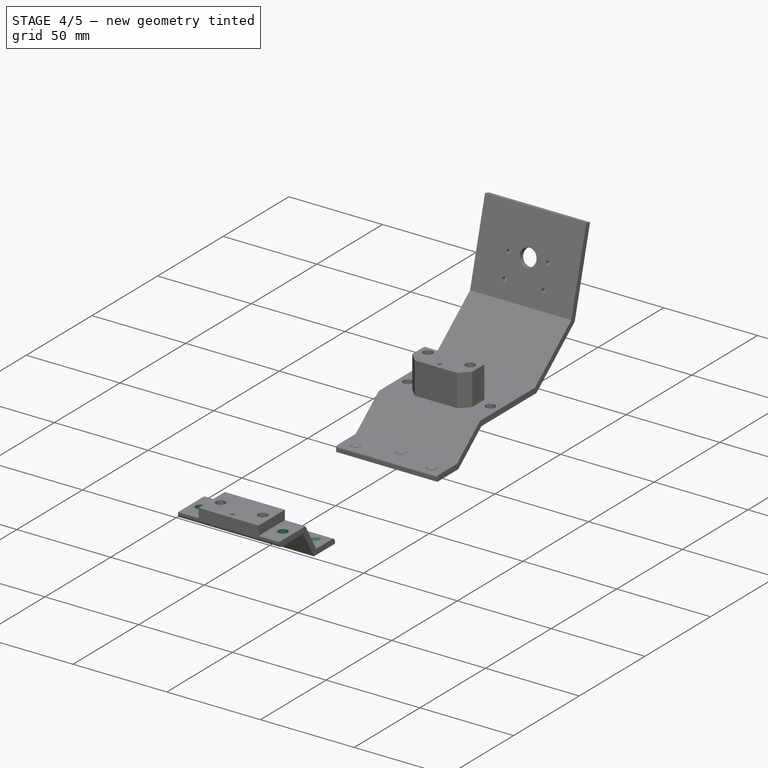
[diagram: stage 4 of 5 — iso view after this stage's code; geometry added in this stage tinted green]
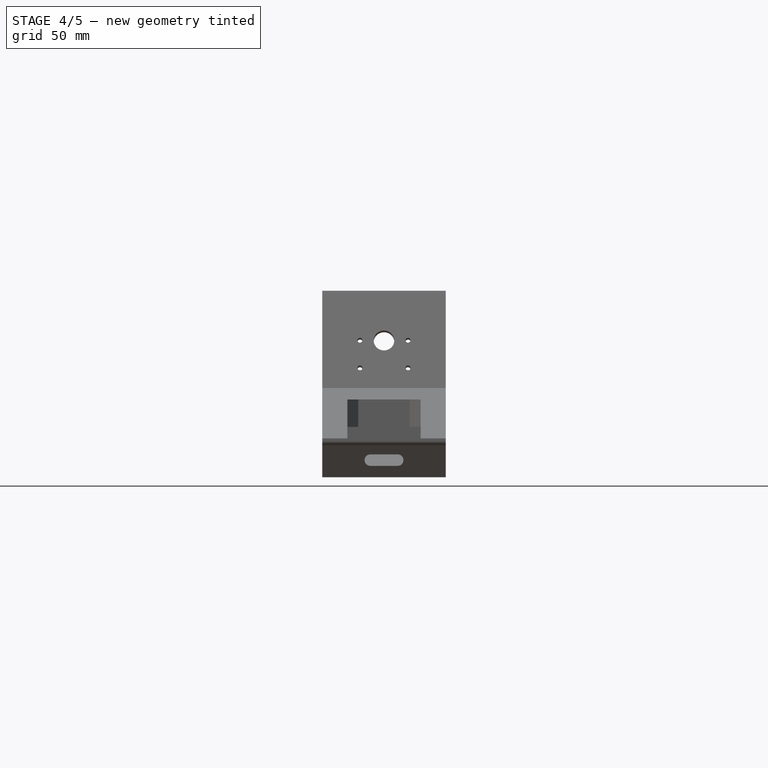
[diagram: stage 4 of 5 — front view after this stage's code; geometry added in this stage tinted green]
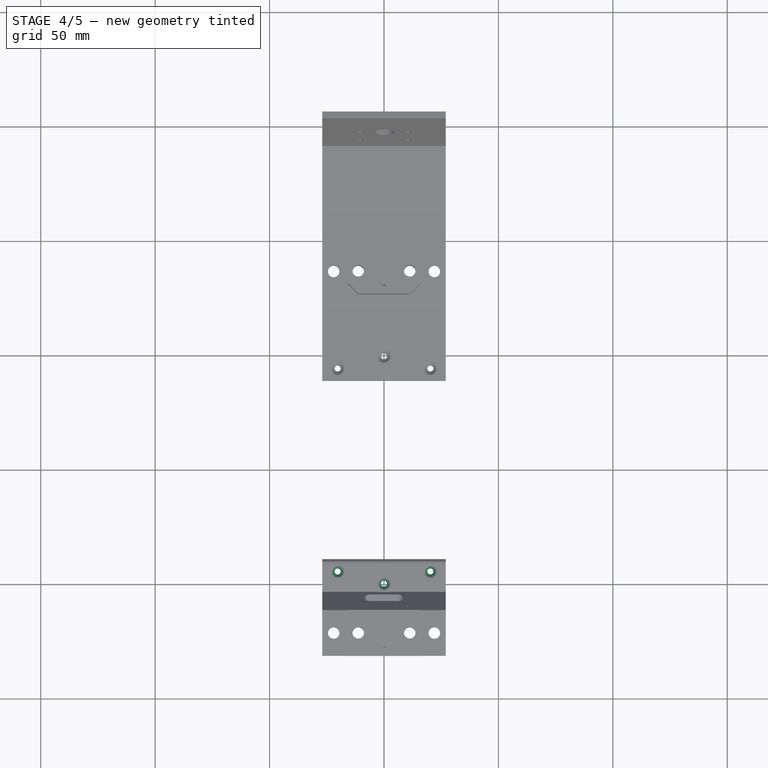
[diagram: stage 4 of 5 — top view after this stage's code; geometry added in this stage tinted green]
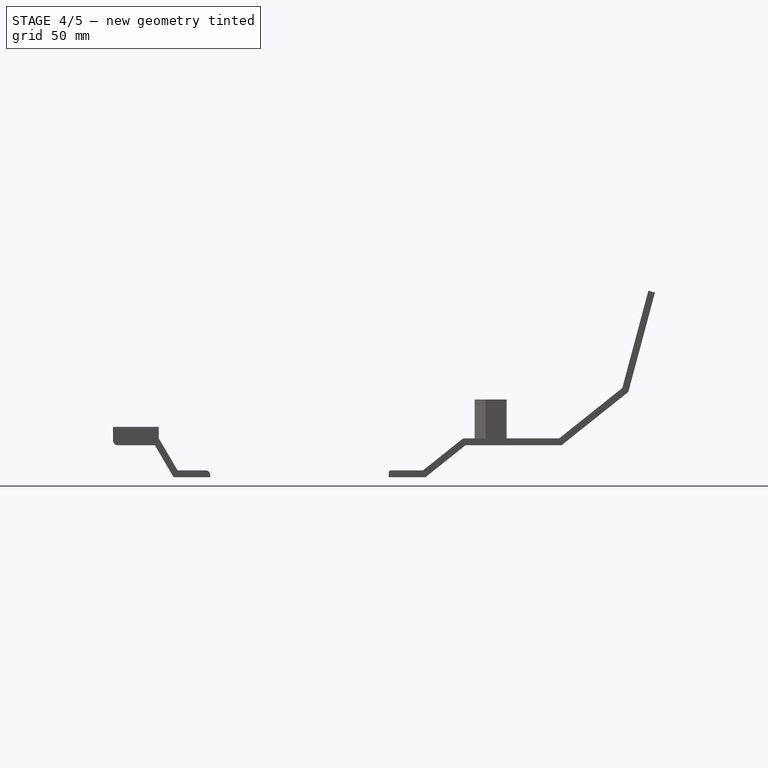
[diagram: stage 4 of 5 — right view after this stage's code; geometry added in this stage tinted green]
FEATURE [Sketcher::SketchObject] Sketch015  label="MountScrewSketch"
  FullyConstrained = false
  MapMode = 5
  Placement = pos=(-7e-15,4e-15,4) rot=(0.707107,0.707107,0;3.14159rad)
  expr: Constraints[5] = <<Dimensions>>.BackWidth * 3 / 4
  expr: Constraints[1] = <<Dimensions>>.MountScrewHoleRadius
  sketch-geometry (3):
    g0: Circle CenterX=-44.3333 CenterY=20.25 CenterZ=0 NormalX=0 NormalY=0 NormalZ=1 AngleXU=0 Radius=1.3
    g1: Circle CenterX=-44.3333 CenterY=-20.25 CenterZ=0 NormalX=0 NormalY=0 NormalZ=1 AngleXU=0 Radius=1.3
    g2: Circle CenterX=-49.6667 CenterY=0 CenterZ=0 NormalX=0 NormalY=0 NormalZ=1 AngleXU=0 Radius=1.3
  constraints (6):
    c: PointOnObject(g2,g-1)
    c: Radius(g2) = 1.3
    c: Equal(g2,g0)
    c: Equal(g2,g1)
    c: Symmetric(g0,g1,g-1)
    c: Distance(g1,g0) = 40.5
FEATURE [PartDesign::Pocket] Pocket007  label="MountScrewPocket"
  BaseFeature = -> Pocket004
  Length = 5
  Length2 = 5
  Placement = pos=(0,0,0) rot=(0.57735,0.57735,0.57735;2.0944rad)
  Profile = -> Sketch015
  Type = 0
FEATURE [PartDesign::Fillet] Fillet003  label="EdgeRoundFillet"
  Base = -> Pocket007 [Edge27,Edge34]
  BaseFeature = -> Pocket007
  Placement = pos=(0,0,0) rot=(0.57735,0.57735,0.57735;2.0944rad)
  Radius = 2
  SupportTransform = false
FEATURE [PartDesign::Body] Body003  label="Lens"
  Group = -> [Sketch016,ShapeBinder002,Pad009]
  Origin = -> Origin004
  Tip = -> Pad009
FEATURE [PartDesign::Chamfer] Chamfer001  label="ScrewHoleChamber"
  Angle = 45
  Base = -> Fillet003 [Edge24,Edge23,Edge25]
  BaseFeature = -> Fillet003
  ChamferType = 0
  FlipDirection = false
  Placement = pos=(0,0,0) rot=(0.57735,0.57735,0.57735;2.0944rad)
  Size = 1.5
  Size2 = 1
  SupportTransform = false
FEATURE [Sketcher::SketchObject] Sketch018
  ExternalGeometry = -> [Chamfer001]
  FullyConstrained = true
  MapMode = 5
  Placement = pos=(-5.9e-15,9.2e-15,21) rot=(0,0,-1;1.5708rad)
  Support = -> [Chamfer001]
  sketch-geometry (3):
    g0: LineSegment StartX=71.5 StartY=27 StartZ=0 EndX=71.5 EndY=-27 EndZ=0
    g1: Circle CenterX=71.5 CenterY=-22 CenterZ=0 NormalX=0 NormalY=0 NormalZ=1 AngleXU=0 Radius=2.5
    g2: Circle CenterX=71.5 CenterY=22 CenterZ=0 NormalX=0 NormalY=0 NormalZ=1 AngleXU=0 Radius=2.5
  constraints (9):
    c: PointOnObject(g0,g-5)
    c: PointOnObject(g0,g-6)
    c: Vertical(g0)
    c: Distance(g-6,g0) = 10
    c: PointOnObject(g1,g0)
    c: Symmetric(g1,g2,g-1)
    c: Distance(g2,g1) = 44
    c: Radius(g2) = 2.5
    c: Radius(g1) = 2.5
FEATURE [PartDesign::Pocket] Pocket011
  BaseFeature = -> Chamfer001
  Length = 5
  Length2 = 5
  Placement = pos=(0,0,0) rot=(0.57735,0.57735,0.57735;2.0944rad)
  Profile = -> Sketch018
  Type = 0
FEATURE [PartDesign::Pocket] Pocket012
  BaseFeature = -> Pocket011
  Length = 5
  Length2 = 5
  Placement = pos=(0,0,0) rot=(0.57735,0.57735,0.57735;2.0944rad)
  Profile = -> Pocket011 [Face34,Face35]
  Type = 0
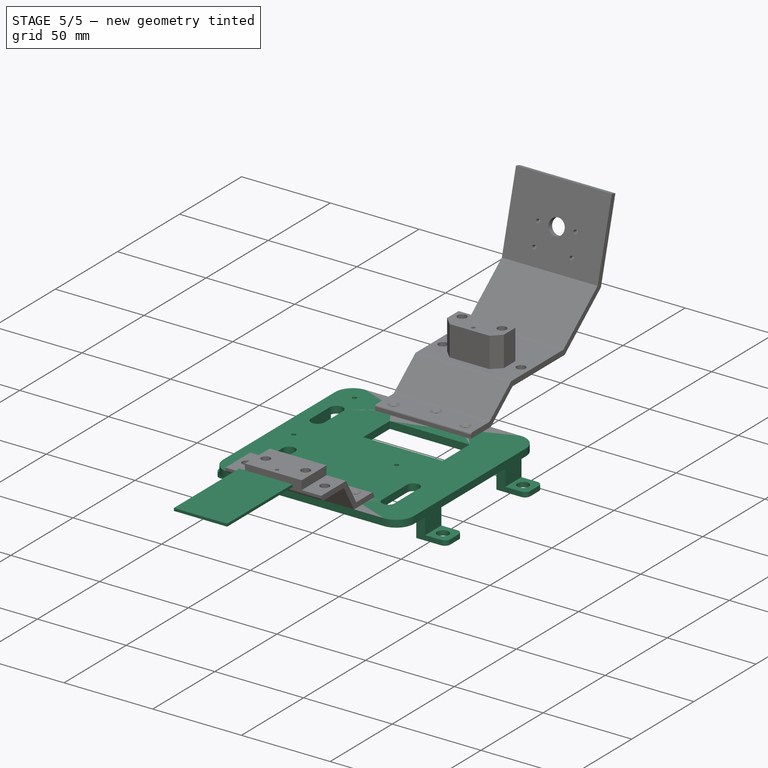
[diagram: stage 5 of 5 — iso view after this stage's code; geometry added in this stage tinted green]
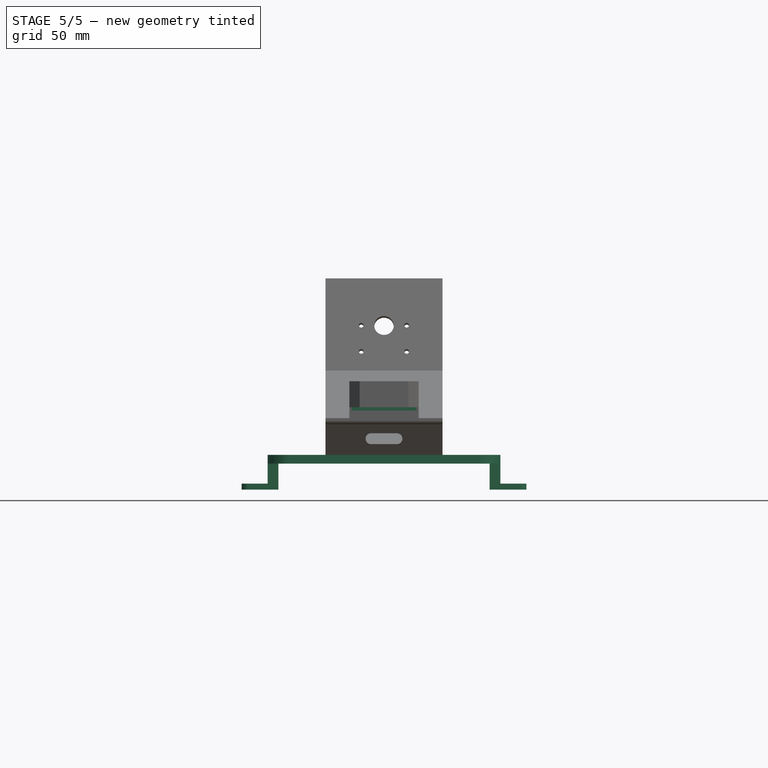
[diagram: stage 5 of 5 — front view after this stage's code; geometry added in this stage tinted green]
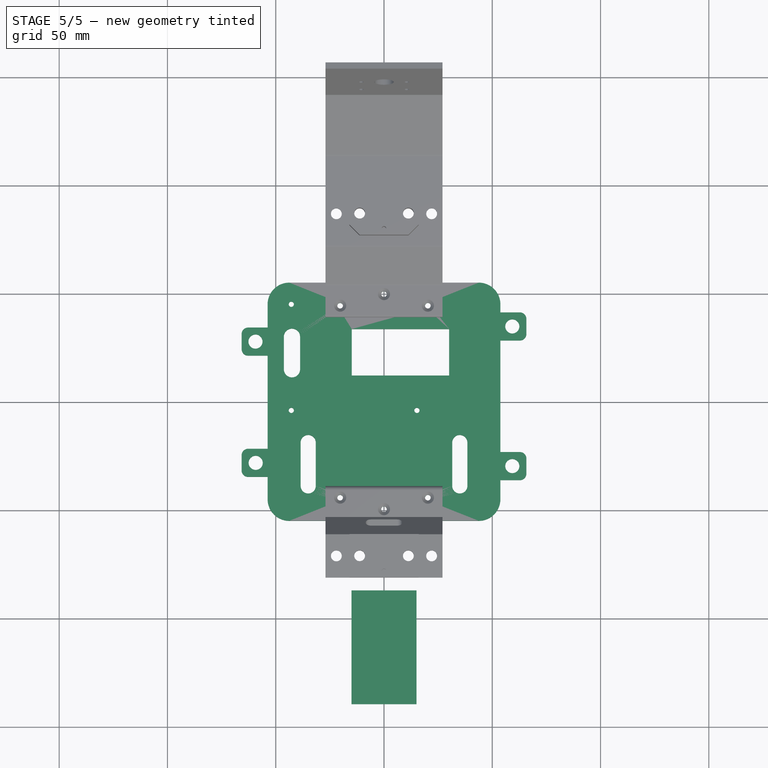
[diagram: stage 5 of 5 — top view after this stage's code; geometry added in this stage tinted green]
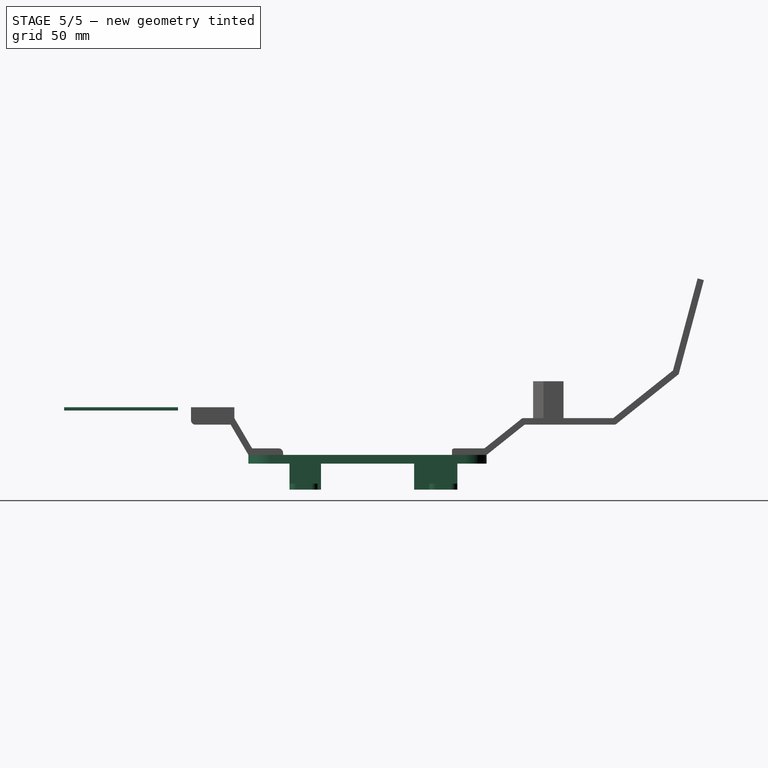
[diagram: stage 5 of 5 — right view after this stage's code; geometry added in this stage tinted green]
FEATURE [PartDesign::Fillet] Fillet  label="FeetFillet"
  Base = -> Pad002 [Edge86,Edge93,Edge107,Edge100,Edge102,Edge95,Edge81,Edge88]
  BaseFeature = -> Pad002
  Radius = 3
  SupportTransform = false
FEATURE [Sketcher::SketchObject] Sketch016
  AttachmentOffset = pos=(0,0,26) rot=(0,0,1;0rad)
  FullyConstrained = false
  MapMode = 5
  Placement = pos=(0,0,26) rot=(0,0,1;0rad)
  Support = -> [XY_Plane004]
  sketch-geometry (4):
    g0: LineSegment StartX=15 StartY=-87.5 StartZ=0 EndX=15 EndY=-140.104 EndZ=0
    g1: LineSegment StartX=-15 StartY=-87.5 StartZ=0 EndX=-15 EndY=-140.104 EndZ=0
    g2: LineSegment StartX=-15 StartY=-140.104 StartZ=0 EndX=15 EndY=-140.104 EndZ=0
    g3: LineSegment StartX=-15 StartY=-87.5 StartZ=0 EndX=15 EndY=-87.5 EndZ=0
  constraints (8):
    c: Vertical(g0)
    c: Vertical(g1)
    c: Coincident(g2,g1)
    c: Coincident(g2,g0)
    c: Horizontal(g2)
    c: PointOnObject(g3,g1)
    c: Coincident(g3,g0)
    c: Horizontal(g3)
FEATURE [PartDesign::ShapeBinder] ShapeBinder002
  Placement = pos=(0,0,0) rot=(0.57735,0.57735,0.57735;2.0944rad)
  TraceSupport = false
FEATURE [PartDesign::Pad] Pad009
  Direction = (0,0,1)
  Length = 1.5
  Length2 = 10
  Profile = -> Sketch016
  Reversed = true
  Type = 0
FEATURE [PartDesign::Pocket] Pocket
  BaseFeature = -> Fillet
  Length = 3
  Length2 = 5
  Profile = -> Fillet [Edge156,Edge154,Edge41,Edge152]
  Reversed = true
  Type = 0
FEATURE [Sketcher::SketchObject] Sketch004  label="PlateHolesSketch"
  ExternalGeometry = -> [Fillet]
  FullyConstrained = false
  MapMode = 5
  Placement = pos=(0,0,4) rot=(0,0,1;0rad)
  Support = -> [Pocket]
  expr: Constraints[60] = <<Dimensions>>.PlateFrontOverlap * 2 / 3
  expr: Constraints[47] = <<Dimensions>>.FrontWidth * 3 / 4
  expr: Constraints[59] = <<Dimensions>>.PlateFrontOverlap * 2 / 3
  expr: Constraints[51] = <<Dimensions>>.MountScrewHoleRadius
  expr: Constraints[56] = <<Dimensions>>.PlateFrontOverlap / 3
  expr: Constraints[0] = <<Dimensions>>.MountScrewHoleRadius
  expr: Constraints[50] = <<Dimensions>>.MountScrewHoleRadius
  expr: Constraints[49] = <<Dimensions>>.MountScrewHoleRadius
  expr: Constraints[58] = <<Dimensions>>.PlateFrontOverlap / 3
  expr: Constraints[45] = <<Dimensions>>.MountScrewHoleRadius
  expr: Constraints[46] = <<Dimensions>>.MountScrewHoleRadius
  expr: Constraints[53] = <<Dimensions>>.BackWidth * 3 / 4
  sketch-geometry (30):
    g0: Circle CenterX=0 CenterY=49.6667 CenterZ=0 NormalX=0 NormalY=0 NormalZ=1 AngleXU=0 Radius=1.3
    g1: Circle CenterX=-42.8 CenterY=45 CenterZ=0 NormalX=0 NormalY=0 NormalZ=1 AngleXU=0 Radius=1.2
    g2: Circle CenterX=-42.8 CenterY=-4 CenterZ=0 NormalX=0 NormalY=0 NormalZ=1 AngleXU=0 Radius=1.2
    g3: Circle CenterX=15.2 CenterY=-4 CenterZ=0 NormalX=0 NormalY=0 NormalZ=1 AngleXU=0 Radius=1.2
    g4: LineSegment StartX=-42.5 StartY=32.5 StartZ=0 EndX=-42.5 EndY=-55 EndZ=0
    g5: ArcOfCircle CenterX=-35 CenterY=-18.8663 CenterZ=0 NormalX=0 NormalY=0 NormalZ=1 AngleXU=0 Radius=3.5 StartAngle=1e-16 EndAngle=3.14159
    g6: ArcOfCircle CenterX=-35 CenterY=-38.8663 CenterZ=0 NormalX=0 NormalY=0 NormalZ=1 AngleXU=0 Radius=3.5 StartAngle=3.14159 EndAngle=6.28319
    g7: LineSegment StartX=-38.5 StartY=-18.8663 StartZ=0 EndX=-38.5 EndY=-38.8663 EndZ=0
    g8: LineSegment StartX=-31.5 StartY=-38.8663 StartZ=0 EndX=-31.5 EndY=-18.8663 EndZ=0
    g9: ArcOfCircle CenterX=35 CenterY=-38.8663 CenterZ=0 NormalX=0 NormalY=0 NormalZ=1 AngleXU=0 Radius=3.5 StartAngle=3.14159 EndAngle=6.28319
    g10: ArcOfCircle CenterX=35 CenterY=-18.8663 CenterZ=0 NormalX=0 NormalY=0 NormalZ=1 AngleXU=0 Radius=3.5 StartAngle=9.2e-15 EndAngle=3.14159
    g11: LineSegment StartX=38.5 StartY=-38.8663 StartZ=0 EndX=38.5 EndY=-18.8663 EndZ=0
    g12: LineSegment StartX=31.5 StartY=-18.8663 StartZ=0 EndX=31.5 EndY=-38.8663 EndZ=0
    g13: ArcOfCircle CenterX=-42.5 CenterY=15 CenterZ=0 NormalX=0 NormalY=0 NormalZ=1 AngleXU=0 Radius=3.75 StartAngle=3.14159 EndAngle=6.28319
    g14: ArcOfCircle CenterX=-42.5 CenterY=30 CenterZ=0 NormalX=0 NormalY=0 NormalZ=1 AngleXU=0 Radius=3.75 StartAngle=4e-16 EndAngle=3.14159
    g15: LineSegment StartX=-38.75 StartY=15 StartZ=0 EndX=-38.75 EndY=30 EndZ=0
    g16: LineSegment StartX=-46.25 StartY=30 StartZ=0 EndX=-46.25 EndY=15 EndZ=0
    g17: LineSegment StartX=-42.8 StartY=-4 StartZ=0 EndX=15.2 EndY=-4 EndZ=0
    g18: LineSegment StartX=-14.9 StartY=33.5586 StartZ=0 EndX=30.1 EndY=33.5586 EndZ=0
    g19: LineSegment StartX=30.1 StartY=33.5586 StartZ=0 EndX=30.1 EndY=12.1081 EndZ=0
    g20: LineSegment StartX=30.1 StartY=12.1081 StartZ=0 EndX=-14.9 EndY=12.1081 EndZ=0
    g21: LineSegment StartX=-14.9 StartY=12.1081 StartZ=0 EndX=-14.9 EndY=33.5586 EndZ=0
    g22: GeomPoint X=7.6 Y=22.8333 Z=0
    g23: LineSegment StartX=-42.8 StartY=-4 StartZ=0 EndX=-14.9 EndY=12.1081 EndZ=0
    g24: Circle CenterX=20.25 CenterY=44.3333 CenterZ=0 NormalX=0 NormalY=0 NormalZ=1 AngleXU=0 Radius=1.3
    g25: Circle CenterX=-20.25 CenterY=44.3333 CenterZ=0 NormalX=0 NormalY=0 NormalZ=1 AngleXU=0 Radius=1.3
    g26: Circle CenterX=20.25 CenterY=-44.3333 CenterZ=0 NormalX=0 NormalY=0 NormalZ=1 AngleXU=0 Radius=1.3
    g27: Circle CenterX=-20.25 CenterY=-44.3333 CenterZ=0 NormalX=0 NormalY=0 NormalZ=1 AngleXU=0 Radius=1.3
    g28: Circle CenterX=0 CenterY=-49.6667 CenterZ=0 NormalX=0 NormalY=0 NormalZ=1 AngleXU=0 Radius=1.3
    g29: LineSegment StartX=-42.8 StartY=-4 StartZ=0 EndX=42.8 EndY=-4 EndZ=0
  constraints (75):
    c: Radius(g0) = 1.3
    c: Horizontal(g3,g2)
    c: Vertical(g4)
    c: Tangent(g5,g7) = -1.5708
    c: Tangent(g7,g6) = -1.5708
    c: Tangent(g6,g8) = -1.5708
    c: Tangent(g8,g5) = -1.5708
    c: Equal(g5,g6)
    c: Tangent(g9,g11) = -1.5708
    c: Tangent(g11,g10) = -1.5708
    c: Tangent(g10,g12) = -1.5708
    c: Tangent(g12,g9) = -1.5708
    c: Equal(g9,g10)
    c: Equal(g5,g9) = 3
    c: Distance(g5,g6) = 20
    c: Tangent(g13,g15) = -1.5708
    c: Tangent(g15,g14) = -1.5708
    c: Tangent(g14,g16) = -1.5708
    c: Tangent(g16,g13) = -1.5708
    c: Equal(g13,g14)
    c: PointOnObject(g13,g4)
    c: PointOnObject(g14,g4)
    c: Distance(g13,g13) = 7.5
    c: Distance(g14,g13) = 15
    c: Distance(g4,g14) = 2.5
    c: Radius(g1) = 1.2
    c: Equal(g3,g2)
    c: Radius(g3) = 1.2
    c: Coincident(g17,g2)
    c: Coincident(g17,g3)
    c: Distance(g4) = 87.5
    c: Coincident(g18,g19)
    c: Coincident(g19,g20)
    c: Coincident(g20,g21)
    c: Coincident(g21,g18)
    c: Horizontal(g20)
    c: Vertical(g19)
    c: Vertical(g21)
    c: Symmetric(g0,g3,g22)
    c: Symmetric(g20,g18,g22)
    c: Horizontal(g18)
    c: Coincident(g23,g20)
    c: Angle(g23) = 0.523599
    c: Distance(g20) = 45
    c: Symmetric(g25,g24,g-2)
    c: Radius(g24) = 1.3
    c: Radius(g25) = 1.3
    c: Distance(g25,g24) = 40.5
    c: Symmetric(g27,g26,g-2)
    c: Radius(g26) = 1.3
    c: Radius(g27) = 1.3
    c: Radius(g28) = 1.3
    c: PointOnObject(g28,g-2)
    c: Distance(g27,g26) = 40.5
    c: PointOnObject(g0,g-2)
    c: PointOnObject(g4,g-6)
    c: Distance(g0,g-7) = 5.33333
    c: Distance(g17) = 58
    c: Distance(g28,g-6) = 5.33333
    c: Distance(g26,g-6) = 10.6667
    c: Distance(g25,g-7) = 10.6667
    c: Coincident(g29,g2)
    c: Distance(g29) = 85.6
    c: Symmetric(g2,g29,g-2)
    c: Distance(g1,g2) = 49
    c: Vertical(g1,g2)
    c: Distance(g1,g-7) = 10
    c: Coincident(g2,g23)
    c: Distance(g10,g9) = 20
    c: Distance(g9,g9) = 3.5
    c: Distance(g13,g-5) = 7.5
    c: Vertical(g5,g6)
    c: Vertical(g10,g9)
    c: Symmetric(g5,g10,g-2)
    c: Distance(g5,g10) = 70
FEATURE [PartDesign::Pocket] Pocket009  label="HolesPocket"
  BaseFeature = -> Pocket
  Length = 5
  Length2 = 5
  Profile = -> Sketch004
  Type = 0
FEATURE [PartDesign::Fillet] Fillet004  label="PlateEdgesFillet"
  Base = -> Pocket009 [Edge84,Edge34,Edge82,Edge33]
  BaseFeature = -> Pocket009
  Radius = 10
  SupportTransform = false
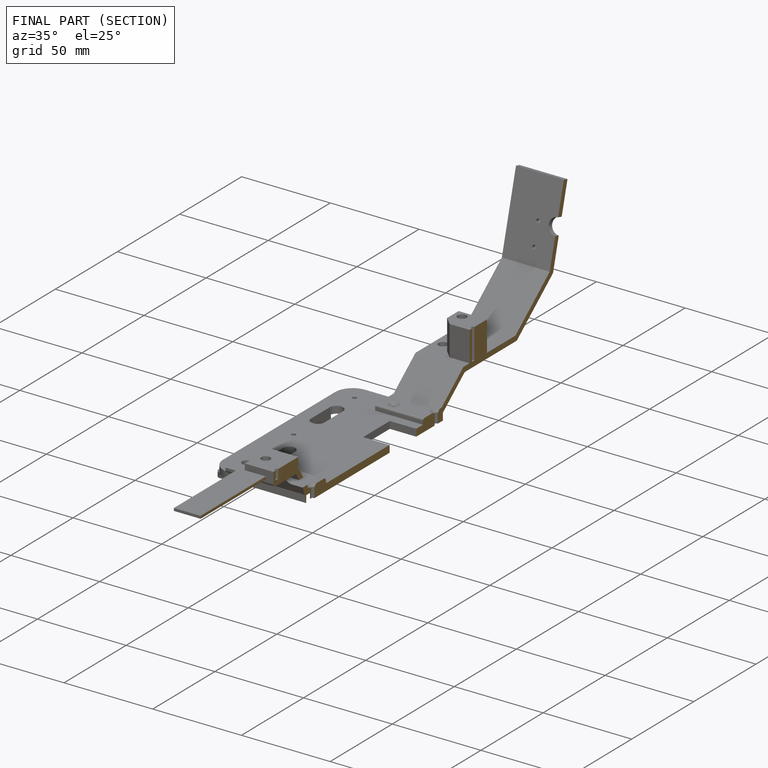
[diagram: finished part — half-section view (interior)]
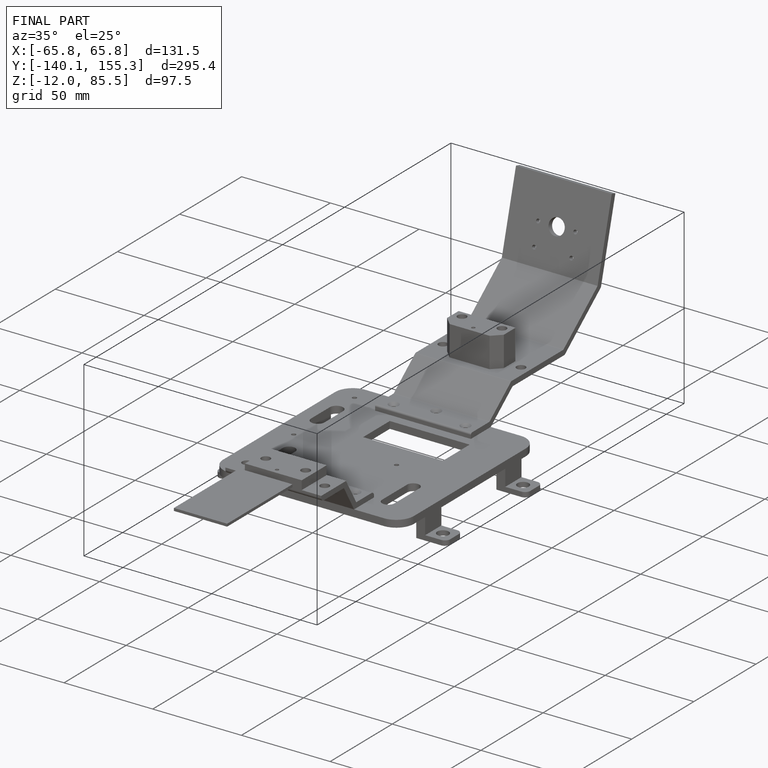
[diagram: finished part — iso view with bounding-box wireframe]
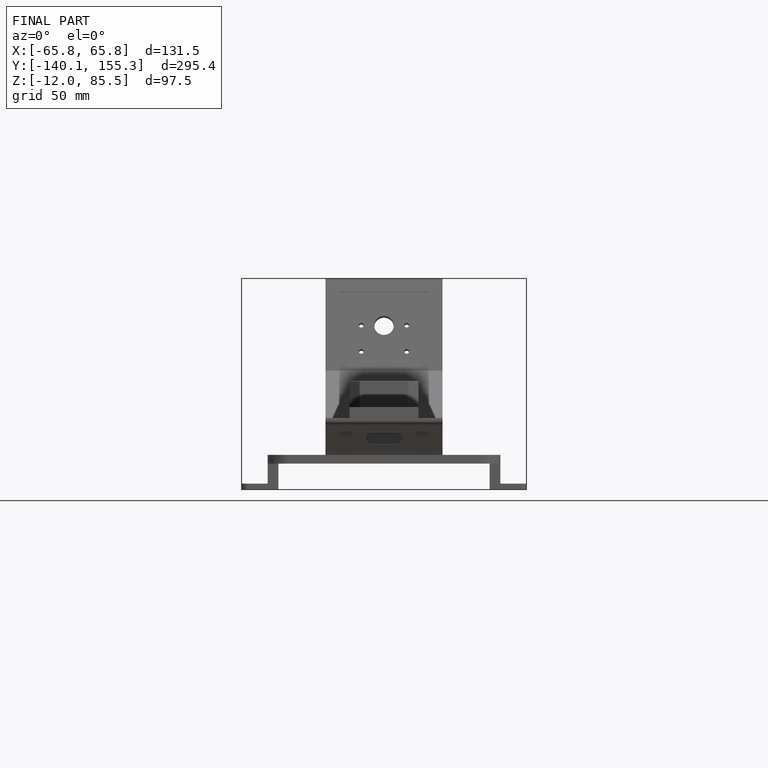
[diagram: finished part — front view with bounding-box wireframe]
